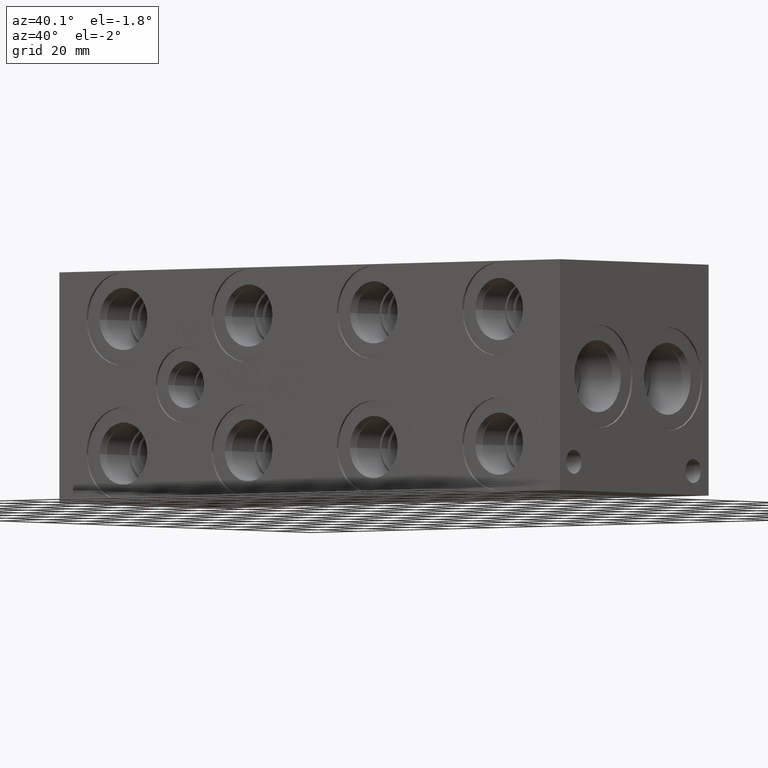
[diagram: clean part render]
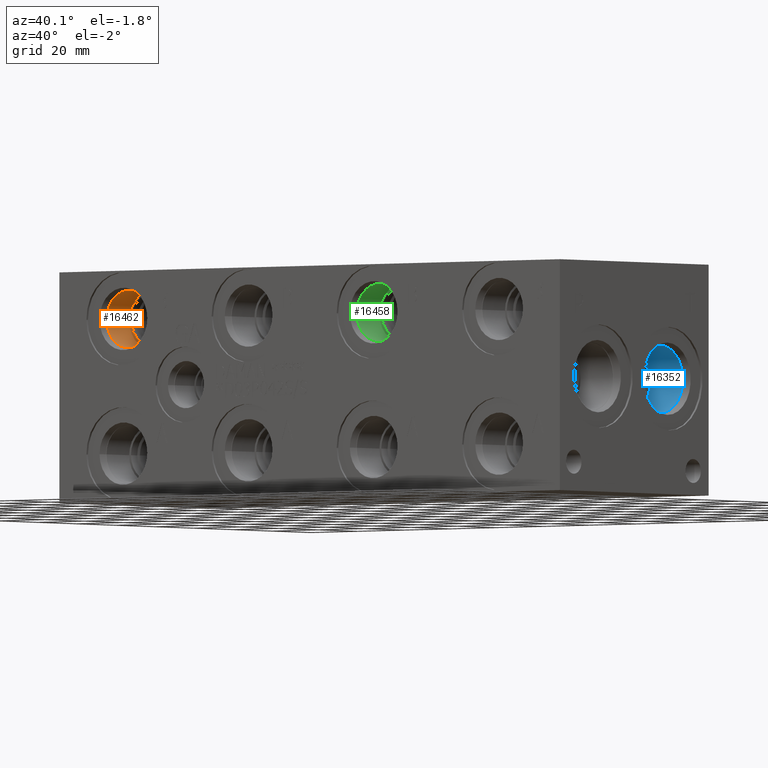
[diagram: same view with three faces highlighted in distinct colors, each labeled with its STEP entity id]
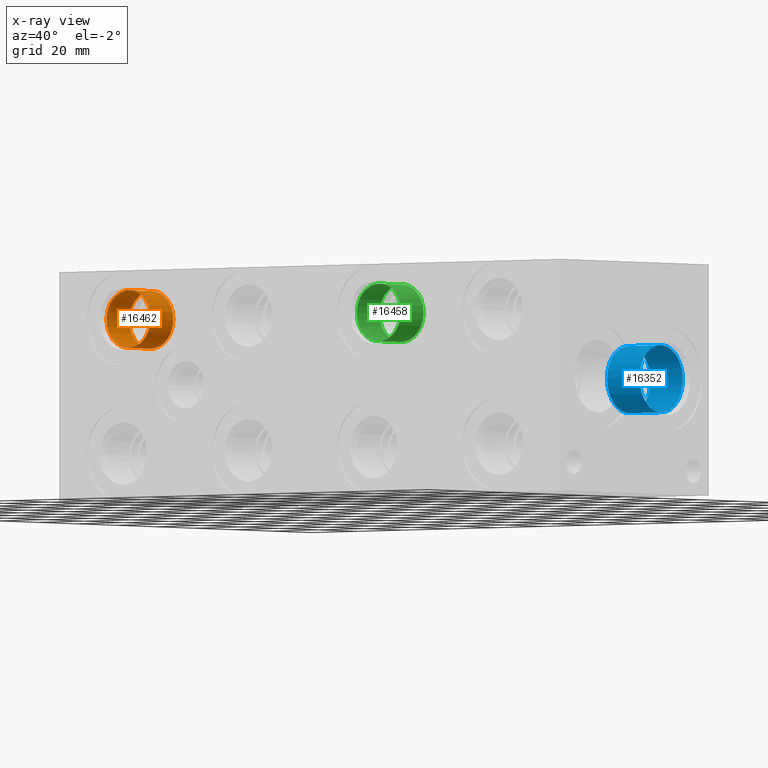
[diagram: x-ray of the same camera — body ghosted, the three highlighted faces saturated]
A machine part, auxiliary view with three faces highlighted in distinct colors.
The next image is the same camera in x-ray (body ghosted, the three faces saturated) — at least one of them is partly hidden behind the body in this view.
Their STEP definitions:

[orange] entity #16462 — the highlighted cylindrical surface (bore or boss wall) has radius 9.525 mm, axis along (0, -1, 0).
#171=CYLINDRICAL_SURFACE('',#17400,9.525);
#494=CIRCLE('',#17397,9.525);
#495=CIRCLE('',#17398,9.525);
#497=CIRCLE('',#17401,9.525);
#2202=FACE_OUTER_BOUND('',#3165,.T.);
#3165=EDGE_LOOP('',(#13988,#13989,#13990,#13991,#13992));
#4673=LINE('',#28085,#6094);
#6094=VECTOR('',#20652,9.525);
#7540=VERTEX_POINT('',#28076);
#7541=VERTEX_POINT('',#28077);
#7543=VERTEX_POINT('',#28083);
#9768=EDGE_CURVE('',#7540,#7541,#494,.T.);
#9769=EDGE_CURVE('',#7541,#7540,#495,.T.);
#9771=EDGE_CURVE('',#7543,#7543,#497,.T.);
#9772=EDGE_CURVE('',#7543,#7541,#4673,.T.);
#13988=ORIENTED_EDGE('',*,*,#9771,.F.);
#13989=ORIENTED_EDGE('',*,*,#9772,.T.);
#13990=ORIENTED_EDGE('',*,*,#9768,.F.);
#13991=ORIENTED_EDGE('',*,*,#9769,.F.);
#13992=ORIENTED_EDGE('',*,*,#9772,.F.);
#16462=ADVANCED_FACE('',(#2202),#171,.F.);
#17397=AXIS2_PLACEMENT_3D('',#28078,#20642,#20643);
#17398=AXIS2_PLACEMENT_3D('',#28079,#20644,#20645);
#17400=AXIS2_PLACEMENT_3D('',#28082,#20648,#20649);
#17401=AXIS2_PLACEMENT_3D('',#28084,#20650,#20651);
#20642=DIRECTION('center_axis',(0.,-1.,0.));
#20643=DIRECTION('ref_axis',(1.,0.,0.));
#20644=DIRECTION('center_axis',(0.,-1.,0.));
#20645=DIRECTION('ref_axis',(1.,0.,0.));
#20648=DIRECTION('center_axis',(0.,-1.,0.));
#20649=DIRECTION('ref_axis',(1.,0.,0.));
#20650=DIRECTION('center_axis',(0.,1.,0.));
#20651=DIRECTION('ref_axis',(1.,0.,0.));
#20652=DIRECTION('',(0.,1.,0.));
#28076=CARTESIAN_POINT('',(36.4998,15.0622,60.325));
#28077=CARTESIAN_POINT('',(17.4498,15.0622,60.325));
#28078=CARTESIAN_POINT('Origin',(26.9748,15.0622,60.325));
#28079=CARTESIAN_POINT('Origin',(26.9748,15.0622,60.325));
#28082=CARTESIAN_POINT('Origin',(26.9748,7.5311,60.325));
#28083=CARTESIAN_POINT('',(17.4498,3.4036,60.325));
#28084=CARTESIAN_POINT('Origin',(26.9748,3.4036,60.325));
#28085=CARTESIAN_POINT('',(17.4498,7.5311,60.325));

[blue] entity #16352 — the highlighted cylindrical surface (bore or boss wall) has radius 11.115 mm, axis along (1, 0, 0).
#121=CYLINDRICAL_SURFACE('',#17119,11.115);
#306=CIRCLE('',#17089,11.115);
#307=CIRCLE('',#17090,11.115);
#323=CIRCLE('',#17116,11.115);
#324=CIRCLE('',#17117,11.115);
#2092=FACE_OUTER_BOUND('',#3035,.T.);
#3035=EDGE_LOOP('',(#13442,#13443,#13444,#13445,#13446,#13447));
#4583=LINE('',#27527,#6004);
#6004=VECTOR('',#19998,11.115);
#7336=VERTEX_POINT('',#27465);
#7337=VERTEX_POINT('',#27467);
#7355=VERTEX_POINT('',#27520);
#7356=VERTEX_POINT('',#27521);
#9482=EDGE_CURVE('',#7337,#7336,#306,.T.);
#9483=EDGE_CURVE('',#7336,#7337,#307,.T.);
#9507=EDGE_CURVE('',#7355,#7356,#323,.T.);
#9508=EDGE_CURVE('',#7356,#7355,#324,.T.);
#9510=EDGE_CURVE('',#7337,#7356,#4583,.T.);
#13442=ORIENTED_EDGE('',*,*,#9482,.T.);
#13443=ORIENTED_EDGE('',*,*,#9483,.T.);
#13444=ORIENTED_EDGE('',*,*,#9510,.T.);
#13445=ORIENTED_EDGE('',*,*,#9507,.F.);
#13446=ORIENTED_EDGE('',*,*,#9508,.F.);
#13447=ORIENTED_EDGE('',*,*,#9510,.F.);
#16352=ADVANCED_FACE('',(#2092),#121,.F.);
#17089=AXIS2_PLACEMENT_3D('',#27468,#19928,#19929);
#17090=AXIS2_PLACEMENT_3D('',#27469,#19930,#19931);
#17116=AXIS2_PLACEMENT_3D('',#27522,#19990,#19991);
#17117=AXIS2_PLACEMENT_3D('',#27523,#19992,#19993);
#17119=AXIS2_PLACEMENT_3D('',#27526,#19996,#19997);
#19928=DIRECTION('center_axis',(1.,0.,0.));
#19929=DIRECTION('ref_axis',(0.,1.,0.));
#19930=DIRECTION('center_axis',(1.,0.,0.));
#19931=DIRECTION('ref_axis',(0.,1.,0.));
#19990=DIRECTION('center_axis',(1.,0.,0.));
#19991=DIRECTION('ref_axis',(0.,1.,0.));
#19992=DIRECTION('center_axis',(1.,0.,0.));
#19993=DIRECTION('ref_axis',(0.,1.,0.));
#19996=DIRECTION('center_axis',(1.,0.,0.));
#19997=DIRECTION('ref_axis',(0.,1.,0.));
#19998=DIRECTION('',(-1.,0.,0.));
#27465=CARTESIAN_POINT('',(212.4354,55.9562,49.215));
#27467=CARTESIAN_POINT('',(212.4354,44.8412,38.1));
#27468=CARTESIAN_POINT('Origin',(212.4354,55.9562,38.1));
#27469=CARTESIAN_POINT('Origin',(212.4354,55.9562,38.1));
#27520=CARTESIAN_POINT('',(198.4502,67.0712,38.1));
#27521=CARTESIAN_POINT('',(198.4502,44.8412,38.1));
#27522=CARTESIAN_POINT('Origin',(198.4502,55.9562,38.1));
#27523=CARTESIAN_POINT('Origin',(198.4502,55.9562,38.1));
#27526=CARTESIAN_POINT('Origin',(207.1751,55.9562,38.1));
#27527=CARTESIAN_POINT('',(207.1751,44.8412,38.1));

[green] entity #16458 — the highlighted cylindrical surface (bore or boss wall) has radius 9.525 mm, axis along (0, -1, 0).
#169=CYLINDRICAL_SURFACE('',#17391,9.525);
#443=CIRCLE('',#17311,9.525);
#489=CIRCLE('',#17388,9.525);
#490=CIRCLE('',#17389,9.525);
#2198=FACE_OUTER_BOUND('',#3160,.T.);
#3160=EDGE_LOOP('',(#13970,#13971,#13972,#13973,#13974));
#4670=LINE('',#28066,#6091);
#6091=VECTOR('',#20629,9.525);
#7481=VERTEX_POINT('',#27900);
#7535=VERTEX_POINT('',#28059);
#7536=VERTEX_POINT('',#28060);
#9687=EDGE_CURVE('',#7481,#7481,#443,.T.);
#9760=EDGE_CURVE('',#7535,#7536,#489,.T.);
#9761=EDGE_CURVE('',#7536,#7535,#490,.T.);
#9763=EDGE_CURVE('',#7481,#7536,#4670,.T.);
#13970=ORIENTED_EDGE('',*,*,#9687,.T.);
#13971=ORIENTED_EDGE('',*,*,#9763,.T.);
#13972=ORIENTED_EDGE('',*,*,#9760,.F.);
#13973=ORIENTED_EDGE('',*,*,#9761,.F.);
#13974=ORIENTED_EDGE('',*,*,#9763,.F.);
#16458=ADVANCED_FACE('',(#2198),#169,.F.);
#17311=AXIS2_PLACEMENT_3D('',#27902,#20440,#20441);
#17388=AXIS2_PLACEMENT_3D('',#28061,#20621,#20622);
#17389=AXIS2_PLACEMENT_3D('',#28062,#20623,#20624);
#17391=AXIS2_PLACEMENT_3D('',#28065,#20627,#20628);
#20440=DIRECTION('center_axis',(0.,-1.,0.));
#20441=DIRECTION('ref_axis',(1.,0.,0.));
#20621=DIRECTION('center_axis',(0.,-1.,0.));
#20622=DIRECTION('ref_axis',(1.,0.,0.));
#20623=DIRECTION('center_axis',(0.,-1.,0.));
#20624=DIRECTION('ref_axis',(1.,0.,0.));
#20627=DIRECTION('center_axis',(0.,-1.,0.));
#20628=DIRECTION('ref_axis',(1.,0.,0.));
#20629=DIRECTION('',(0.,1.,0.));
#27900=CARTESIAN_POINT('',(125.3998,3.4036,60.325));
#27902=CARTESIAN_POINT('Origin',(134.9248,3.4036,60.325));
#28059=CARTESIAN_POINT('',(144.4498,15.0622,60.325));
#28060=CARTESIAN_POINT('',(125.3998,15.0622,60.325));
#28061=CARTESIAN_POINT('Origin',(134.9248,15.0622,60.325));
#28062=CARTESIAN_POINT('Origin',(134.9248,15.0622,60.325));
#28065=CARTESIAN_POINT('Origin',(134.9248,7.5311,60.325));
#28066=CARTESIAN_POINT('',(125.3998,7.5311,60.325));